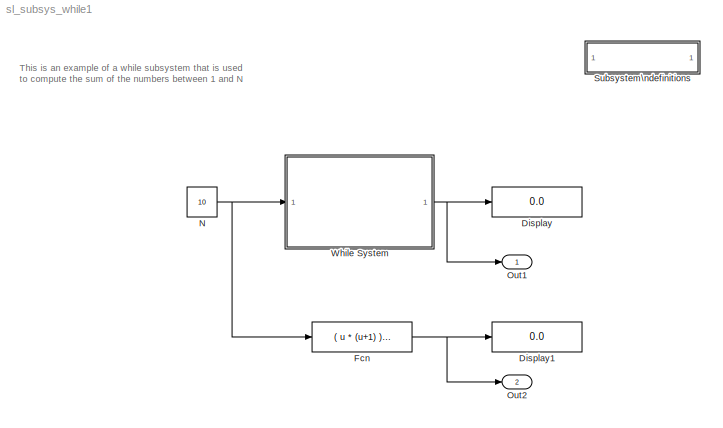
MODEL sl_subsys_while1
KIND model
BLOCK [SubSystem]  Subsystem\ndefinitions
  MaskDisplay = disp('Subsystem\\ndefinitions')\n\n
  MaskIconFrame = on
  MaskIconOpaque = on
  MaskIconRotate = none
  MaskIconUnits = autoscale
  MinAlgLoopOccurrences = off
  OpenFcn = helpview([matlabroot,'/toolbox/simulink/simdemos/sl_subsys_definitions.html']);
  Ports = []
  PropExecContextAcrossSSBoundary = on
  RTWSystemCode = Auto
  TreatAsAtomicUnit = off
BLOCK [Display] Display
  Decimation = 1
  Ports = [1]
BLOCK [Display] Display1
  Decimation = 1
  Ports = [1]
BLOCK [Fcn] Fcn
  Expr = ( u * (u+1) ) / 2
BLOCK [Constant] N
  Value = 10
BLOCK [Outport] Out1
  IconDisplay = Port number
BLOCK [Outport] Out2
  IconDisplay = Port number
  Port = 2
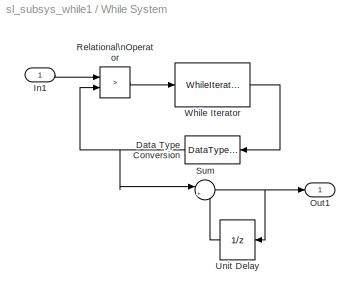
BLOCK [SubSystem] While System
  MinAlgLoopOccurrences = off
  Ports = [1, 1]
  PropExecContextAcrossSSBoundary = on
  RTWSystemCode = Auto
  TreatAsAtomicUnit = on
BLOCK [DataTypeConversion] While System/Data Type Conversion
  OutDataTypeMode = double
BLOCK [Inport] While System/In1
  IconDisplay = Port number
  LatchInput = off
  Port = 1
BLOCK [Outport] While System/Out1
  IconDisplay = Port number
BLOCK [RelationalOperator] While System/Relational\nOperator
  Operator = >
BLOCK [Sum] While System/Sum
  IconShape = round
  Inputs = |++
  Ports = [2, 1]
BLOCK [UnitDelay] While System/Unit Delay
  SampleTime = -1
BLOCK [WhileIterator] While System/While Iterator
  MaxIters = -1
  Ports = [1, 1]
  ResetStates = reset
  ShowIterationPort = on
  WhileBlockType = do-while
ANNOTATION (root): This is an example of a while subsystem that is used \nto compute the sum of the numbers between 1 and N
NET Fcn:1 -> Display1:1, Out2:1
NET N:1 -> Fcn:1, While System:1
NET While System/Data Type Conversion:1 -> While System/Relational\nOperator:2, While System/Sum:1
LINE While System/In1:1 -> While System/Relational\nOperator:1
LINE While System/Relational\nOperator:1 -> While System/While Iterator:1
NET While System/Sum:1 -> While System/Out1:1, While System/Unit Delay:1
LINE While System/Unit Delay:1 -> While System/Sum:2
LINE While System/While Iterator:1 -> While System/Data Type Conversion:1
NET While System:1 -> Display:1, Out1:1
note: NET lines group one-source signal fan-out (src -> all destinations, sorted); 1:1 wires keep LINE
